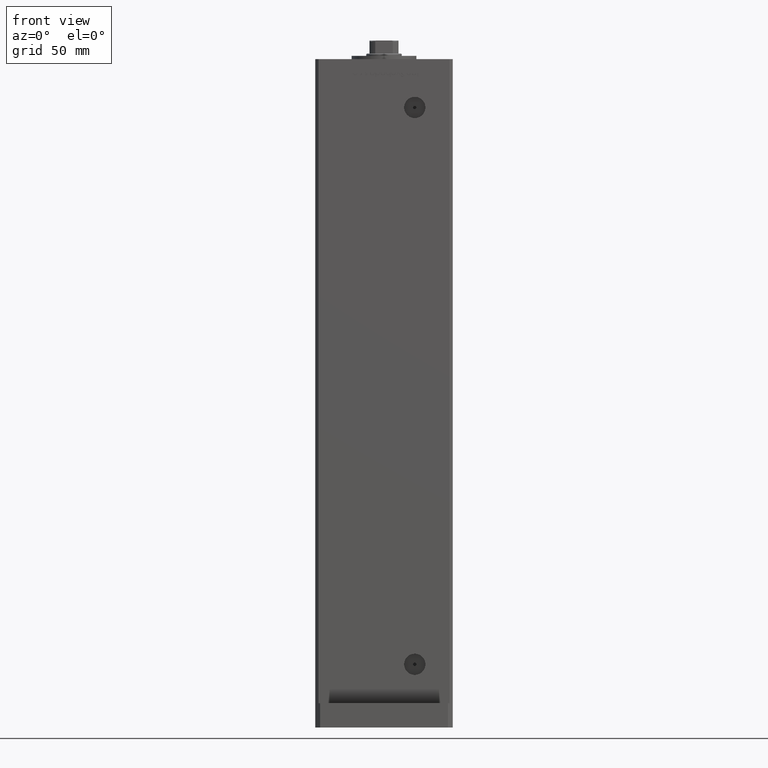
[diagram: clean part render]
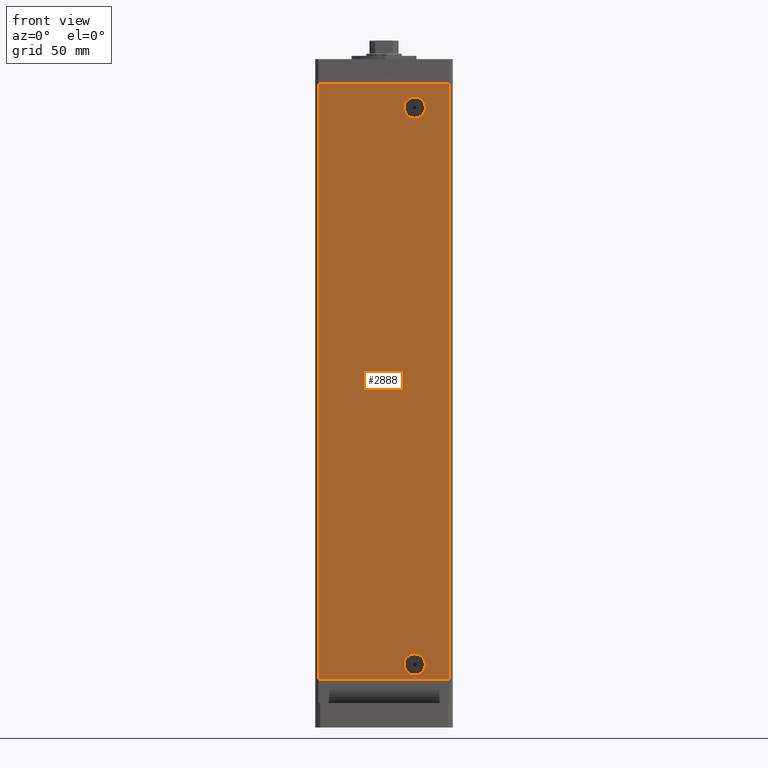
[diagram: same view with one face highlighted and labeled with its STEP entity id]
A machine part, front view. The second image highlights one B-rep face of the part: STEP entity #2888.
In plain terms, the highlighted planar face has unit normal (0, 1, 0).
Its self-contained STEP definition (entity closure, byte-faithful):
#8 = CIRCLE ( 'NONE', #39059, 6.579999999999975202 ) ;
#56 = EDGE_CURVE ( 'NONE', #23720, #962, #51781, .T. ) ;
#165 = VERTEX_POINT ( 'NONE', #52689 ) ;
#171 = DIRECTION ( 'NONE',  ( -0.000000000000000000, -0.000000000000000000, -1.000000000000000000 ) ) ;
#877 = DIRECTION ( 'NONE',  ( 0.000000000000000000, 0.000000000000000000, -1.000000000000000000 ) ) ;
#962 = VERTEX_POINT ( 'NONE', #43019 ) ;
#1398 = CARTESIAN_POINT ( 'NONE',  ( -40.49999999999998579, -37.50000000000000711, 368.5000000000000000 ) ) ;
#2140 = LINE ( 'NONE', #39366, #17663 ) ;
#2398 = EDGE_CURVE ( 'NONE', #34157, #165, #6749, .T. ) ;
#2872 = CARTESIAN_POINT ( 'NONE',  ( 40.49999999999998579, -37.50000000000000711, 368.5000000000000000 ) ) ;
#2888 = ADVANCED_FACE ( 'NONE', ( #9274, #34792, #5200 ), #46774, .F. ) ;
#3831 = EDGE_CURVE ( 'NONE', #40413, #5199, #14931, .T. ) ;
#4501 = LINE ( 'NONE', #49358, #31011 ) ;
#5006 = CARTESIAN_POINT ( 'NONE',  ( 18.99999999999998934, -37.50000000000000711, 9.000000000000007105 ) ) ;
#5199 = VERTEX_POINT ( 'NONE', #7571 ) ;
#5200 = FACE_BOUND ( 'NONE', #48133, .T. ) ;
#6132 = CARTESIAN_POINT ( 'NONE',  ( 18.99999999999994671, -37.50000000000000711, 353.5000000000000000 ) ) ;
#6595 = EDGE_CURVE ( 'NONE', #44806, #35142, #4501, .T. ) ;
#6749 = CIRCLE ( 'NONE', #43952, 6.579999999999975202 ) ;
#7571 = CARTESIAN_POINT ( 'NONE',  ( -40.49999999999998579, -37.50000000000000711, 0.000000000000000000 ) ) ;
#9274 = FACE_BOUND ( 'NONE', #48272, .T. ) ;
#10874 = EDGE_LOOP ( 'NONE', ( #44278, #43207, #53283, #27387 ) ) ;
#11135 = CARTESIAN_POINT ( 'NONE',  ( -40.49999999999998579, -37.50000000000000711, 368.5000000000000000 ) ) ;
#13850 = DIRECTION ( 'NONE',  ( 0.000000000000000000, -1.000000000000000000, 0.000000000000000000 ) ) ;
#14931 = LINE ( 'NONE', #11135, #40511 ) ;
#15739 = DIRECTION ( 'NONE',  ( -0.000000000000000000, -0.000000000000000000, -1.000000000000000000 ) ) ;
#17663 = VECTOR ( 'NONE', #47263, 1000.000000000000000 ) ;
#18078 = DIRECTION ( 'NONE',  ( -0.000000000000000000, 1.000000000000000000, -0.000000000000000000 ) ) ;
#19680 = CARTESIAN_POINT ( 'NONE',  ( 40.49999999999998579, -37.50000000000000711, 0.000000000000000000 ) ) ;
#20349 = ORIENTED_EDGE ( 'NONE', *, *, #40625, .T. ) ;
#20975 = CARTESIAN_POINT ( 'NONE',  ( 18.99999999999994671, -37.50000000000000711, 353.5000000000000000 ) ) ;
#22279 = AXIS2_PLACEMENT_3D ( 'NONE', #51092, #13850, #26070 ) ;
#22286 = DIRECTION ( 'NONE',  ( 0.000000000000000000, -0.000000000000000000, 1.000000000000000000 ) ) ;
#23050 = CIRCLE ( 'NONE', #24802, 6.579999999999998295 ) ;
#23720 = VERTEX_POINT ( 'NONE', #52394 ) ;
#24802 = AXIS2_PLACEMENT_3D ( 'NONE', #5006, #48867, #41442 ) ;
#24843 = CARTESIAN_POINT ( 'NONE',  ( -40.49999999999998579, -37.50000000000000711, 368.5000000000000000 ) ) ;
#26070 = DIRECTION ( 'NONE',  ( 0.000000000000000000, 0.000000000000000000, -1.000000000000000000 ) ) ;
#26370 = CARTESIAN_POINT ( 'NONE',  ( -40.49999999999998579, -37.50000000000000711, 368.5000000000000000 ) ) ;
#26510 = EDGE_CURVE ( 'NONE', #5199, #35142, #2140, .T. ) ;
#27387 = ORIENTED_EDGE ( 'NONE', *, *, #3831, .T. ) ;
#30068 = EDGE_CURVE ( 'NONE', #962, #23720, #23050, .T. ) ;
#30187 = LINE ( 'NONE', #1398, #32852 ) ;
#31011 = VECTOR ( 'NONE', #171, 1000.000000000000000 ) ;
#31792 = AXIS2_PLACEMENT_3D ( 'NONE', #26370, #33994, #22286 ) ;
#32852 = VECTOR ( 'NONE', #42709, 1000.000000000000000 ) ;
#32857 = EDGE_CURVE ( 'NONE', #40413, #44806, #30187, .T. ) ;
#33149 = ORIENTED_EDGE ( 'NONE', *, *, #30068, .F. ) ;
#33994 = DIRECTION ( 'NONE',  ( 0.000000000000000000, 1.000000000000000000, 0.000000000000000000 ) ) ;
#34157 = VERTEX_POINT ( 'NONE', #49033 ) ;
#34792 = FACE_OUTER_BOUND ( 'NONE', #10874, .T. ) ;
#35142 = VERTEX_POINT ( 'NONE', #19680 ) ;
#37568 = DIRECTION ( 'NONE',  ( -0.000000000000000000, 1.000000000000000000, -0.000000000000000000 ) ) ;
#39059 = AXIS2_PLACEMENT_3D ( 'NONE', #20975, #37568, #877 ) ;
#39283 = DIRECTION ( 'NONE',  ( 0.000000000000000000, 0.000000000000000000, -1.000000000000000000 ) ) ;
#39366 = CARTESIAN_POINT ( 'NONE',  ( -40.49999999999998579, -37.50000000000000711, 0.000000000000000000 ) ) ;
#40413 = VERTEX_POINT ( 'NONE', #24843 ) ;
#40511 = VECTOR ( 'NONE', #15739, 1000.000000000000000 ) ;
#40625 = EDGE_CURVE ( 'NONE', #165, #34157, #8, .T. ) ;
#41442 = DIRECTION ( 'NONE',  ( 0.000000000000000000, 0.000000000000000000, -1.000000000000000000 ) ) ;
#42709 = DIRECTION ( 'NONE',  ( 1.000000000000000000, 0.000000000000000000, 0.000000000000000000 ) ) ;
#43019 = CARTESIAN_POINT ( 'NONE',  ( 18.99999999999998934, -37.50000000000000711, 15.58000000000000718 ) ) ;
#43207 = ORIENTED_EDGE ( 'NONE', *, *, #6595, .F. ) ;
#43952 = AXIS2_PLACEMENT_3D ( 'NONE', #6132, #18078, #39283 ) ;
#44278 = ORIENTED_EDGE ( 'NONE', *, *, #26510, .T. ) ;
#44806 = VERTEX_POINT ( 'NONE', #2872 ) ;
#45641 = ORIENTED_EDGE ( 'NONE', *, *, #2398, .T. ) ;
#46774 = PLANE ( 'NONE',  #31792 ) ;
#47263 = DIRECTION ( 'NONE',  ( 1.000000000000000000, 0.000000000000000000, 0.000000000000000000 ) ) ;
#47943 = ORIENTED_EDGE ( 'NONE', *, *, #56, .F. ) ;
#48133 = EDGE_LOOP ( 'NONE', ( #45641, #20349 ) ) ;
#48272 = EDGE_LOOP ( 'NONE', ( #47943, #33149 ) ) ;
#48867 = DIRECTION ( 'NONE',  ( 0.000000000000000000, -1.000000000000000000, 0.000000000000000000 ) ) ;
#49033 = CARTESIAN_POINT ( 'NONE',  ( 18.99999999999994671, -37.50000000000000711, 346.9200000000000159 ) ) ;
#49358 = CARTESIAN_POINT ( 'NONE',  ( 40.49999999999998579, -37.50000000000000711, 368.5000000000000000 ) ) ;
#51092 = CARTESIAN_POINT ( 'NONE',  ( 18.99999999999998934, -37.50000000000000711, 9.000000000000007105 ) ) ;
#51781 = CIRCLE ( 'NONE', #22279, 6.579999999999998295 ) ;
#52394 = CARTESIAN_POINT ( 'NONE',  ( 18.99999999999998934, -37.50000000000000711, 2.420000000000009699 ) ) ;
#52689 = CARTESIAN_POINT ( 'NONE',  ( 18.99999999999994671, -37.50000000000000711, 360.0799999999999272 ) ) ;
#53283 = ORIENTED_EDGE ( 'NONE', *, *, #32857, .F. ) ;